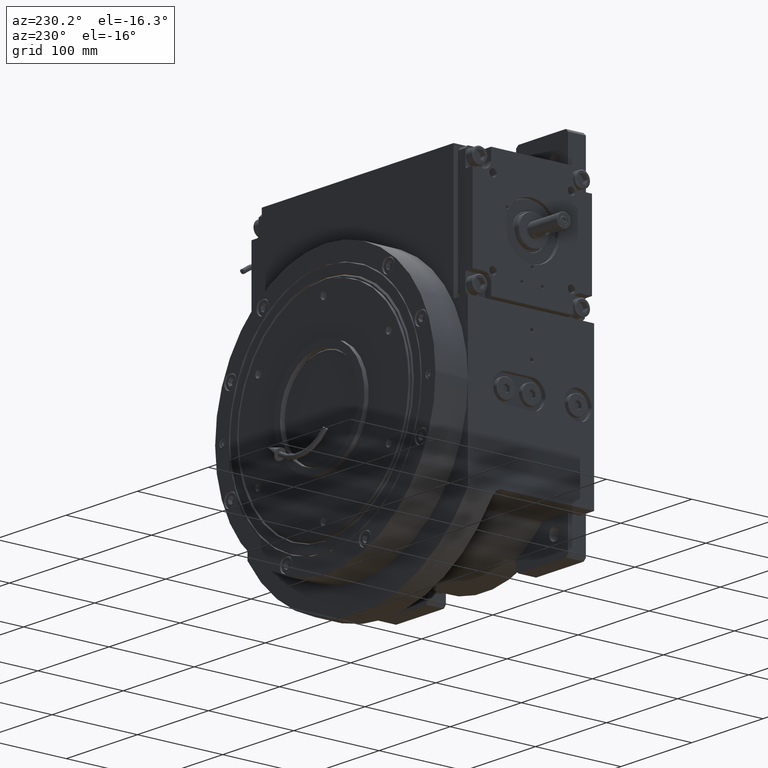
[diagram: clean part render]
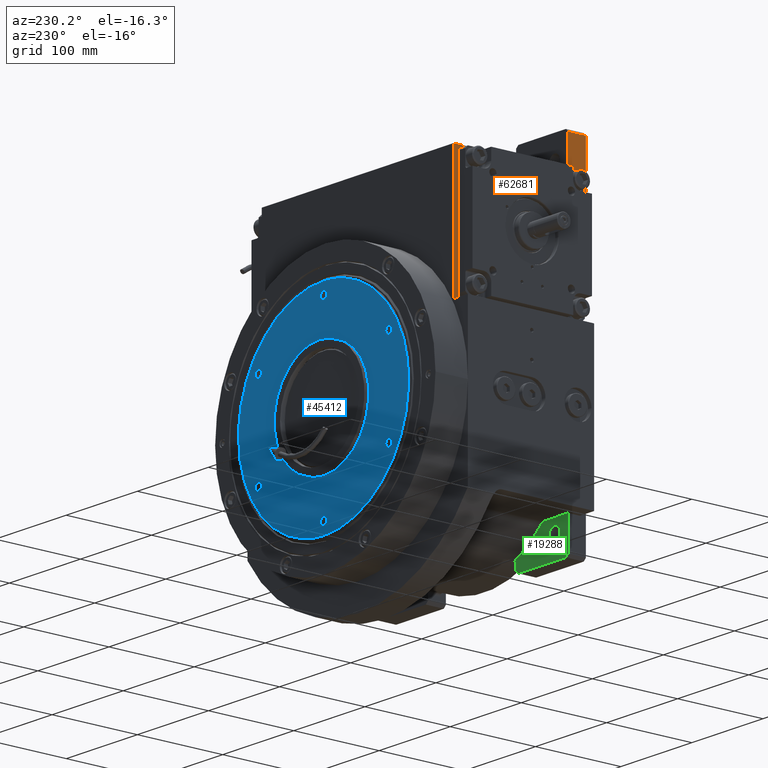
[diagram: same view with three faces highlighted in distinct colors, each labeled with its STEP entity id]
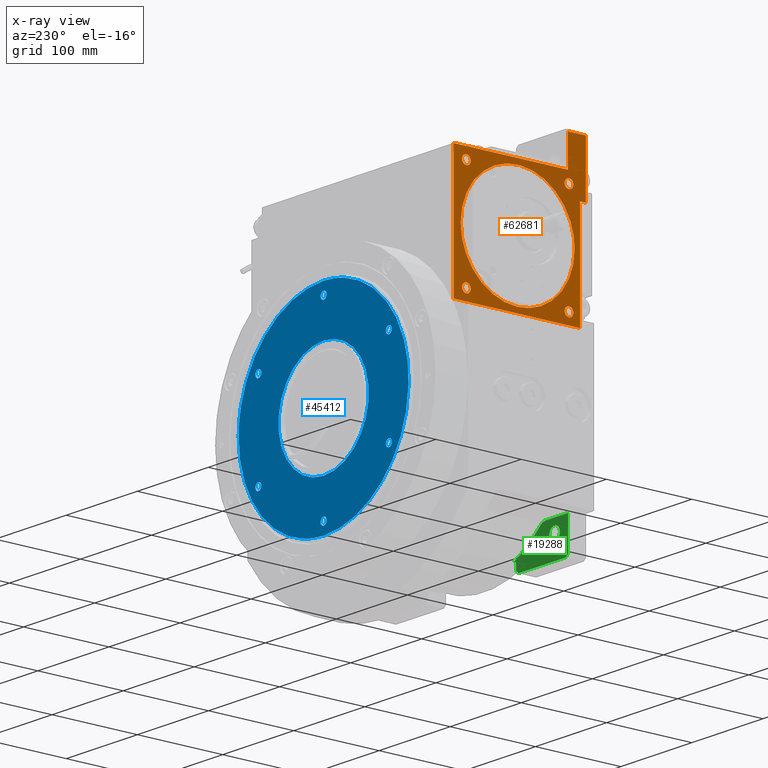
[diagram: x-ray of the same camera — body ghosted, the three highlighted faces saturated]
A machine part, auxiliary view with three faces highlighted in distinct colors.
The next image is the same camera in x-ray (body ghosted, the three faces saturated) — at least one of them is partly hidden behind the body in this view.
Their STEP definitions:

[orange] entity #62681 — the highlighted planar face has unit normal (-1, 0, 0).
#62 = CARTESIAN_POINT ( 'NONE',  ( -135.0000000000000000, -53.05018506670872114, 112.2812554254124109 ) ) ;
#406 = CARTESIAN_POINT ( 'NONE',  ( -134.9999999999999716, -8.711652072756507437, 86.80225663221509080 ) ) ;
#731 = EDGE_CURVE ( 'NONE', #2280, #35458, #46646, .T. ) ;
#869 = ORIENTED_EDGE ( 'NONE', *, *, #20220, .T. ) ;
#1015 = CARTESIAN_POINT ( 'NONE',  ( -135.0000000000000000, -60.10407640085649916, 92.89592359914350084 ) ) ;
#1342 = CARTESIAN_POINT ( 'NONE',  ( -135.0000000000000000, 65.79818871033656080, 164.1440743054472478 ) ) ;
#1689 = CARTESIAN_POINT ( 'NONE',  ( -135.0000000000000000, 50.28417944682632168, 197.0891851905739713 ) ) ;
#1904 = CARTESIAN_POINT ( 'NONE',  ( -135.0000000000000000, 55.00407640085649774, 213.1040764008565134 ) ) ;
#1936 = CARTESIAN_POINT ( 'NONE',  ( -135.0000000000000000, 40.71683731053553856, 99.94851659146181078 ) ) ;
#2036 = CARTESIAN_POINT ( 'NONE',  ( -135.0000409023520263, 66.73197994141509071, 152.9999992669739868 ) ) ;
#2074 = ORIENTED_EDGE ( 'NONE', *, *, #59299, .T. ) ;
#2280 = VERTEX_POINT ( 'NONE', #52084 ) ;
#2381 = CARTESIAN_POINT ( 'NONE',  ( -134.9999999999999716, 57.92087000630010607, 186.4290464929079292 ) ) ;
#2630 = CARTESIAN_POINT ( 'NONE',  ( -135.0000000000000000, 63.22501461799187439, 131.5381801942880884 ) ) ;
#3673 = CARTESIAN_POINT ( 'NONE',  ( -135.0000000000000000, -66.72617910770702565, 148.5899839204739123 ) ) ;
#3758 = DIRECTION ( 'NONE',  ( 1.000000000000000000, 0.000000000000000000, 0.000000000000000000 ) ) ;
#4131 = FACE_BOUND ( 'NONE', #38877, .T. ) ;
#4340 = CARTESIAN_POINT ( 'NONE',  ( -135.0000409023520263, 66.73197994141509071, 152.9999992669739868 ) ) ;
#4398 = EDGE_CURVE ( 'NONE', #29829, #5084, #48325, .T. ) ;
#4437 = CARTESIAN_POINT ( 'NONE',  ( -134.9999999999999716, -65.42346443907699438, 166.1478136891902579 ) ) ;
#4628 = EDGE_CURVE ( 'NONE', #48943, #5163, #64130, .T. ) ;
#4926 = ORIENTED_EDGE ( 'NONE', *, *, #19467, .T. ) ;
#4975 = CARTESIAN_POINT ( 'NONE',  ( -134.9999999999999716, -63.59265469323654685, 132.5656891662362113 ) ) ;
#5038 = CIRCLE ( 'NONE', #31764, 5.100000000000000533 ) ;
#5084 = VERTEX_POINT ( 'NONE', #44381 ) ;
#5163 = VERTEX_POINT ( 'NONE', #28544 ) ;
#5325 = CARTESIAN_POINT ( 'NONE',  ( -135.0000000000000000, -35.25234619547600801, 96.29704203192304135 ) ) ;
#5823 = DIRECTION ( 'NONE',  ( 0.000000000000000000, 1.000000000000000000, 0.000000000000000000 ) ) ;
#6327 = CARTESIAN_POINT ( 'NONE',  ( -134.9999999999999716, -2.329241871309106346E-09, 86.26809113139657370 ) ) ;
#6610 = B_SPLINE_CURVE_WITH_KNOTS ( 'NONE', 3,
 ( #2036, #34140, #44560, #60249, #1342, #22623, #28210, #39353, #24010, #45253, #49799, #55364, #2381, #12181, #1689, #61271, #18782, #28891, #40019, #28547, #34479, #34822, #50138, #17414, #18442, #60929, #12531, #65113, #49449, #38661, #22975, #44220, #65457, #17752, #33802, #25706, #62637, #41059, #62296, #14920, #46956, #67521, #9010, #68203, #51518, #36197, #52199, #14582, #20489, #41741, #4437, #9696, #13899, #57407 ),
 .UNSPECIFIED., .F., .F.,
 ( 4, 1, 1, 1, 1, 2, 2, 2, 2, 2, 2, 2, 2, 2, 2, 2, 2, 2, 2, 2, 2, 2, 2, 2, 1, 1, 1, 1, 2, 2, 4 ),
 ( 0.000000000000000000, 0.03125000000000071471, 0.04687500000000087430, 0.05468750000000116573, 0.05859375000000113104, 0.06054687500000110328, 0.06250000000000106859, 0.1250000000000010547, 0.1875000000000010270, 0.2500000000000009992, 0.2812500000000009992, 0.3125000000000009437, 0.3437500000000008882, 0.3750000000000008327, 0.4062500000000008327, 0.4375000000000008327, 0.5000000000000007772, 0.5625000000000007772, 0.6250000000000007772, 0.6875000000000007772, 0.7500000000000006661, 0.8125000000000006661, 0.8437500000000008882, 0.8750000000000009992, 0.9062500000000012212, 0.9218750000000011102, 0.9296875000000013323, 0.9335937500000013323, 0.9355468750000012212, 0.9375000000000009992, 1.000000000000000000 ),
 .UNSPECIFIED. ) ;
#7000 = CIRCLE ( 'NONE', #28131, 5.100000000000000533 ) ;
#7745 = ORIENTED_EDGE ( 'NONE', *, *, #4398, .T. ) ;
#7784 = DIRECTION ( 'NONE',  ( 1.000000000000000000, 0.000000000000000000, 0.000000000000000000 ) ) ;
#8073 = CARTESIAN_POINT ( 'NONE',  ( -135.0000000000000000, -80.00000000000000000, 262.0000000000000000 ) ) ;
#8228 = CARTESIAN_POINT ( 'NONE',  ( -135.0000000000000284, 21.49036814208763602, 89.67127071490156709 ) ) ;
#9010 = CARTESIAN_POINT ( 'NONE',  ( -134.9999999999999716, -60.81508464904416655, 180.5594510968731754 ) ) ;
#9043 = FACE_BOUND ( 'NONE', #56280, .T. ) ;
#9085 = ORIENTED_EDGE ( 'NONE', *, *, #33386, .T. ) ;
#9179 = DIRECTION ( 'NONE',  ( 1.000000000000000000, 0.000000000000000000, 0.000000000000000000 ) ) ;
#9696 = CARTESIAN_POINT ( 'NONE',  ( -135.0000000000000284, -66.29897171660866206, 161.7486669247570603 ) ) ;
#10198 = CARTESIAN_POINT ( 'NONE',  ( -134.9999999999999716, -23.51255065178064285, 90.50893780825224155 ) ) ;
#10426 = VERTEX_POINT ( 'NONE', #52280 ) ;
#10555 = CARTESIAN_POINT ( 'NONE',  ( -134.9999999999999432, -44.08922657045396676, 102.7159309287766291 ) ) ;
#10634 = EDGE_CURVE ( 'NONE', #35458, #2280, #17591, .T. ) ;
#11245 = EDGE_CURVE ( 'NONE', #49993, #48943, #32793, .T. ) ;
#11806 = EDGE_CURVE ( 'NONE', #29829, #29847, #59624, .T. ) ;
#12181 = CARTESIAN_POINT ( 'NONE',  ( -134.9999999999999716, 53.05066654387906766, 193.7180225626652543 ) ) ;
#12458 = LINE ( 'NONE', #54959, #45891 ) ;
#12531 = CARTESIAN_POINT ( 'NONE',  ( -134.9999999999999716, 15.16700582922174689, 218.0223788455523106 ) ) ;
#12638 = ORIENTED_EDGE ( 'NONE', *, *, #43166, .T. ) ;
#12775 = CARTESIAN_POINT ( 'NONE',  ( -135.0000000000000284, 33.43209210231695749, 95.08071934291891125 ) ) ;
#12866 = VERTEX_POINT ( 'NONE', #61862 ) ;
#12998 = CARTESIAN_POINT ( 'NONE',  ( -135.0000000000000000, 75.00000000000000000, 226.0000000000000000 ) ) ;
#13110 = CARTESIAN_POINT ( 'NONE',  ( -135.0000000000000000, 66.10061881365629688, 143.7339223711496459 ) ) ;
#13452 = CARTESIAN_POINT ( 'NONE',  ( -134.9999999999999716, 65.62994355687315817, 140.9196313714796815 ) ) ;
#13899 = CARTESIAN_POINT ( 'NONE',  ( -135.0000000000000000, -66.72632366456167574, 157.4104984626123098 ) ) ;
#13921 = VERTEX_POINT ( 'NONE', #43099 ) ;
#13937 = DIRECTION ( 'NONE',  ( 0.000000000000000000, 0.000000000000000000, 1.000000000000000000 ) ) ;
#14275 = FACE_BOUND ( 'NONE', #19989, .T. ) ;
#14582 = CARTESIAN_POINT ( 'NONE',  ( -135.0000000000000284, -65.25695639718203722, 166.9545771028307968 ) ) ;
#14805 = EDGE_CURVE ( 'NONE', #12866, #43311, #49768, .T. ) ;
#14920 = CARTESIAN_POINT ( 'NONE',  ( -135.0000000000000568, -56.70339096116889266, 188.2513165201359868 ) ) ;
#15430 = CARTESIAN_POINT ( 'NONE',  ( -134.9999999999999432, -65.34074498831350297, 139.4479566302737510 ) ) ;
#15445 = CARTESIAN_POINT ( 'NONE',  ( -135.0000000000000000, -60.10407640085649916, 213.1040764008565134 ) ) ;
#15776 = VERTEX_POINT ( 'NONE', #42338 ) ;
#15786 = CARTESIAN_POINT ( 'NONE',  ( -134.9999999999999716, -27.56220132081741880, 92.18662720043361958 ) ) ;
#15850 = VECTOR ( 'NONE', #49836, 1000.000000000000000 ) ;
#15903 = AXIS2_PLACEMENT_3D ( 'NONE', #15445, #33129, #42272 ) ;
#16137 = CARTESIAN_POINT ( 'NONE',  ( -134.9999999999999432, -2.191423099419564036, 86.26796766456610044 ) ) ;
#17414 = CARTESIAN_POINT ( 'NONE',  ( -135.0000000000000000, 23.51421264022126678, 215.4903728155080671 ) ) ;
#17591 = CIRCLE ( 'NONE', #66508, 5.100000000000000533 ) ;
#17752 = CARTESIAN_POINT ( 'NONE',  ( -135.0000000000000284, -29.58642321814674858, 212.9748835028085239 ) ) ;
#17763 = AXIS2_PLACEMENT_3D ( 'NONE', #45808, #18645, #29787 ) ;
#18195 = CARTESIAN_POINT ( 'NONE',  ( -135.0000000000000000, -80.00000000000000000, 199.0000000000000000 ) ) ;
#18344 = CARTESIAN_POINT ( 'NONE',  ( -135.0000000000000000, 53.05025701681024941, 112.2815311348377350 ) ) ;
#18442 = CARTESIAN_POINT ( 'NONE',  ( -135.0000000000000000, 21.45943048861658653, 216.2259089635468001 ) ) ;
#18645 = DIRECTION ( 'NONE',  ( 1.000000000000000000, 0.000000000000000000, 0.000000000000000000 ) ) ;
#18688 = CARTESIAN_POINT ( 'NONE',  ( -135.0000000000000284, 44.08875741230184531, 102.7155775752728744 ) ) ;
#18782 = CARTESIAN_POINT ( 'NONE',  ( -135.0000000000000000, 44.02102373728642704, 203.2011511416854717 ) ) ;
#18841 = VECTOR ( 'NONE', #44280, 1000.000000000000000 ) ;
#19125 = DIRECTION ( 'NONE',  ( 0.000000000000000000, 1.000000000000000000, 0.000000000000000000 ) ) ;
#19467 = EDGE_CURVE ( 'NONE', #10426, #36728, #40408, .T. ) ;
#19698 = EDGE_CURVE ( 'NONE', #29294, #35724, #56333, .T. ) ;
#19849 = CARTESIAN_POINT ( 'NONE',  ( -135.0000000000000000, -73.00000000000000000, 80.00000000000000000 ) ) ;
#19989 = EDGE_LOOP ( 'NONE', ( #67225, #2074 ) ) ;
#20193 = LINE ( 'NONE', #41798, #49358 ) ;
#20220 = EDGE_CURVE ( 'NONE', #36728, #29847, #66416, .T. ) ;
#20489 = CARTESIAN_POINT ( 'NONE',  ( -135.0000000000000000, -65.34088526874842273, 166.5520740222143559 ) ) ;
#20546 = DIRECTION ( 'NONE',  ( 0.000000000000000000, 0.000000000000000000, 1.000000000000000000 ) ) ;
#20867 = DIRECTION ( 'NONE',  ( 0.000000000000000000, 0.000000000000000000, 1.000000000000000000 ) ) ;
#20997 = CARTESIAN_POINT ( 'NONE',  ( -134.9999999999999716, -57.92136488741729750, 119.5716955799964865 ) ) ;
#21339 = CARTESIAN_POINT ( 'NONE',  ( -134.9999999999999716, -2.329241871309106346E-09, 86.26809113139657370 ) ) ;
#21523 = CARTESIAN_POINT ( 'NONE',  ( -135.0000000000000000, -73.00000000000000000, 199.0000000000000000 ) ) ;
#22540 = CARTESIAN_POINT ( 'NONE',  ( -135.0000000000000000, -73.00000000000000000, 199.0000000000000000 ) ) ;
#22623 = CARTESIAN_POINT ( 'NONE',  ( -134.9999999999999716, 65.62977199967382091, 165.0802809792315600 ) ) ;
#22975 = CARTESIAN_POINT ( 'NONE',  ( -135.0000000000000000, -8.720209342224498172, 219.3049496050768425 ) ) ;
#23218 = CARTESIAN_POINT ( 'NONE',  ( -135.0000000000000000, 62.49045538544596923, 129.4852013648632010 ) ) ;
#23543 = ORIENTED_EDGE ( 'NONE', *, *, #32583, .T. ) ;
#23930 = CARTESIAN_POINT ( 'NONE',  ( -135.0000000000000284, -65.42330025478716493, 139.8521579021163177 ) ) ;
#24010 = CARTESIAN_POINT ( 'NONE',  ( -134.9999999999999432, 65.47660074393127161, 165.8799824009114161 ) ) ;
#24048 = CARTESIAN_POINT ( 'NONE',  ( -135.0000000000000000, 65.20407640085649348, 92.89592359914350084 ) ) ;
#24969 = AXIS2_PLACEMENT_3D ( 'NONE', #54838, #7784, #44719 ) ;
#25403 = DIRECTION ( 'NONE',  ( -1.000000000000000000, 0.000000000000000000, 0.000000000000000000 ) ) ;
#25706 = CARTESIAN_POINT ( 'NONE',  ( -135.0000000000000284, -40.71800029252239739, 206.0507047104556193 ) ) ;
#25749 = DIRECTION ( 'NONE',  ( 1.000000000000000000, 0.000000000000000000, 0.000000000000000000 ) ) ;
#26214 = CARTESIAN_POINT ( 'NONE',  ( -134.9999999999999716, -33.38171972416309785, 95.17557014791913161 ) ) ;
#26561 = CARTESIAN_POINT ( 'NONE',  ( -135.0000000000000000, -50.28434484062721310, 108.9109816805293462 ) ) ;
#27590 = EDGE_LOOP ( 'NONE', ( #50363, #51682 ) ) ;
#27846 = ORIENTED_EDGE ( 'NONE', *, *, #40928, .T. ) ;
#28131 = AXIS2_PLACEMENT_3D ( 'NONE', #1015, #68384, #41923 ) ;
#28210 = CARTESIAN_POINT ( 'NONE',  ( -134.9999999999999716, 65.55388850672152046, 165.4808809779810019 ) ) ;
#28544 = CARTESIAN_POINT ( 'NONE',  ( -135.0000409023520263, 66.73197994141509071, 152.9999992669739868 ) ) ;
#28547 = CARTESIAN_POINT ( 'NONE',  ( -134.9999999999999716, 35.25355292848020383, 209.7021507953806179 ) ) ;
#28588 = CARTESIAN_POINT ( 'NONE',  ( -135.0000000000000000, -59.00000000000000000, 226.0000000000000000 ) ) ;
#28794 = CARTESIAN_POINT ( 'NONE',  ( -135.0000000000000000, 65.47677242538900089, 140.1200420156758639 ) ) ;
#28891 = CARTESIAN_POINT ( 'NONE',  ( -134.9999999999999716, 40.65023664082247734, 205.9674258609106516 ) ) ;
#29294 = VERTEX_POINT ( 'NONE', #59745 ) ;
#29787 = DIRECTION ( 'NONE',  ( 0.000000000000000000, -1.000000000000000000, 0.000000000000000000 ) ) ;
#29829 = VERTEX_POINT ( 'NONE', #8073 ) ;
#29847 = VERTEX_POINT ( 'NONE', #18195 ) ;
#29954 = CARTESIAN_POINT ( 'NONE',  ( -135.0000000000000000, -73.00000000000000000, 80.00000000000000000 ) ) ;
#31196 = VECTOR ( 'NONE', #33725, 1000.000000000000000 ) ;
#31460 = CARTESIAN_POINT ( 'NONE',  ( -134.9999999999999716, -29.53603513529392188, 93.11995366836703170 ) ) ;
#31482 = EDGE_CURVE ( 'NONE', #42378, #64044, #44945, .T. ) ;
#31591 = ORIENTED_EDGE ( 'NONE', *, *, #731, .T. ) ;
#31764 = AXIS2_PLACEMENT_3D ( 'NONE', #40295, #61543, #41331 ) ;
#31816 = CARTESIAN_POINT ( 'NONE',  ( -134.9999999999999716, -40.71859690145856092, 99.94981178766525431 ) ) ;
#31985 = CARTESIAN_POINT ( 'NONE',  ( -135.0000000000000000, -65.20407640085649348, 92.89592359914340136 ) ) ;
#32522 = ORIENTED_EDGE ( 'NONE', *, *, #4628, .T. ) ;
#32583 = EDGE_CURVE ( 'NONE', #5084, #42378, #12458, .T. ) ;
#32793 = B_SPLINE_CURVE_WITH_KNOTS ( 'NONE', 3,
 ( #39605, #3673, #34400, #23930, #63143, #15430, #57919, #52723, #53066, #4975, #48171, #47818, #20997, #62, #26561, #10555, #31816, #5325, #26214, #31460, #15786, #10198, #42600, #58265, #47469, #68716, #406, #63839, #16137, #21339 ),
 .UNSPECIFIED., .F., .F.,
 ( 4, 2, 2, 1, 1, 1, 1, 2, 2, 2, 2, 2, 2, 2, 2, 2, 4 ),
 ( 0.000000000000000000, 0.06249998089108574351, 0.06445310529393215304, 0.06640622969677854870, 0.07031247850247174247, 0.07812497611385851859, 0.09374997133663214022, 0.1249999617821793696, 0.1874999426732739949, 0.2499999235643686202, 0.3124999044554632177, 0.3437498949010105442, 0.3749998853465578708, 0.4062498757921051973, 0.4374998662376525238, 0.4687498566831997948, 0.4999998471287471213 ),
 .UNSPECIFIED. ) ;
#33129 = DIRECTION ( 'NONE',  ( 1.000000000000000000, 0.000000000000000000, 0.000000000000000000 ) ) ;
#33355 = CARTESIAN_POINT ( 'NONE',  ( -135.0000000000000000, -59.00000000000000000, 226.0000000000000000 ) ) ;
#33377 = EDGE_CURVE ( 'NONE', #43311, #12866, #7000, .T. ) ;
#33386 = EDGE_CURVE ( 'NONE', #13921, #15776, #45935, .T. ) ;
#33725 = DIRECTION ( 'NONE',  ( 0.000000000000000000, -1.000000000000000000, 0.000000000000000000 ) ) ;
#33802 = CARTESIAN_POINT ( 'NONE',  ( -135.0000000000000000, -33.43096252916070910, 210.9200370307772232 ) ) ;
#34140 = CARTESIAN_POINT ( 'NONE',  ( -135.0000000000000000, 66.72911495674068760, 155.2050087137197636 ) ) ;
#34400 = CARTESIAN_POINT ( 'NONE',  ( -135.0000000000000000, -66.29877207312664211, 144.2518108264758609 ) ) ;
#34479 = CARTESIAN_POINT ( 'NONE',  ( -135.0000000000000000, 33.38170125432347390, 210.8244405435396800 ) ) ;
#34730 = CARTESIAN_POINT ( 'NONE',  ( -135.0000000000000000, 66.72918723465414814, 150.7947496820667368 ) ) ;
#34822 = CARTESIAN_POINT ( 'NONE',  ( -135.0000000000000000, 29.53601480369213661, 212.8800563805484103 ) ) ;
#35458 = VERTEX_POINT ( 'NONE', #24048 ) ;
#35724 = VERTEX_POINT ( 'NONE', #1904 ) ;
#36197 = CARTESIAN_POINT ( 'NONE',  ( -135.0000000000000284, -64.61074946405196329, 169.7532608989889127 ) ) ;
#36728 = VERTEX_POINT ( 'NONE', #21523 ) ;
#36915 = ORIENTED_EDGE ( 'NONE', *, *, #38338, .F. ) ;
#36943 = VECTOR ( 'NONE', #5823, 1000.000000000000000 ) ;
#37943 = ORIENTED_EDGE ( 'NONE', *, *, #11806, .F. ) ;
#38338 = EDGE_CURVE ( 'NONE', #57356, #64044, #20193, .T. ) ;
#38661 = CARTESIAN_POINT ( 'NONE',  ( -135.0000000000000284, -4.382079036627421154, 219.7320843503953540 ) ) ;
#38877 = EDGE_LOOP ( 'NONE', ( #66888, #31591 ) ) ;
#38928 = DIRECTION ( 'NONE',  ( 0.000000000000000000, 0.000000000000000000, -1.000000000000000000 ) ) ;
#39353 = CARTESIAN_POINT ( 'NONE',  ( -134.9999999999999716, 65.50247619971588620, 165.7478073253977868 ) ) ;
#39593 = CARTESIAN_POINT ( 'NONE',  ( -135.0000000000000000, 59.97650030994342529, 123.4160534162174514 ) ) ;
#39605 = CARTESIAN_POINT ( 'NONE',  ( -135.0000409023520263, -66.73197994141509071, 153.0000007330259848 ) ) ;
#39926 = CARTESIAN_POINT ( 'NONE',  ( -135.0000000000000000, 8.721664892427865468, 86.69534183209887601 ) ) ;
#40019 = CARTESIAN_POINT ( 'NONE',  ( -135.0000000000000000, 38.89527317447581112, 207.2686076397533839 ) ) ;
#40183 = CARTESIAN_POINT ( 'NONE',  ( -135.0000409023520263, -66.73197994141509071, 153.0000007330259848 ) ) ;
#40295 = CARTESIAN_POINT ( 'NONE',  ( -135.0000000000000000, 60.10407640085649916, 213.1040764008565134 ) ) ;
#40408 = LINE ( 'NONE', #19849, #41858 ) ;
#40806 = AXIS2_PLACEMENT_3D ( 'NONE', #29954, #25403, #20867 ) ;
#40928 = EDGE_CURVE ( 'NONE', #15776, #13921, #57179, .T. ) ;
#41059 = CARTESIAN_POINT ( 'NONE',  ( -135.0000000000000284, -50.28392013255727022, 197.0894609627082730 ) ) ;
#41331 = DIRECTION ( 'NONE',  ( 0.000000000000000000, -1.000000000000000000, -5.442269728554688521E-15 ) ) ;
#41741 = CARTESIAN_POINT ( 'NONE',  ( -134.9999999999999716, -65.39603914459314637, 166.2834823389712824 ) ) ;
#41798 = CARTESIAN_POINT ( 'NONE',  ( -135.0000000000000000, 75.00000000000000000, 80.00000000000000000 ) ) ;
#41858 = VECTOR ( 'NONE', #13937, 1000.000000000000000 ) ;
#41923 = DIRECTION ( 'NONE',  ( 0.000000000000000000, -1.000000000000000000, -2.721134864277344261E-15 ) ) ;
#42272 = DIRECTION ( 'NONE',  ( 0.000000000000000000, -1.000000000000000000, -5.442269728554688521E-15 ) ) ;
#42338 = CARTESIAN_POINT ( 'NONE',  ( -135.0000000000000000, -55.00407640085649774, 213.1040764008565134 ) ) ;
#42378 = VERTEX_POINT ( 'NONE', #33355 ) ;
#42600 = CARTESIAN_POINT ( 'NONE',  ( -135.0000000000000000, -21.45945447757745583, 89.77409920556289080 ) ) ;
#42850 = CARTESIAN_POINT ( 'NONE',  ( -135.0000000000000000, 75.00000000000000000, 80.00000000000000000 ) ) ;
#43099 = CARTESIAN_POINT ( 'NONE',  ( -135.0000000000000000, -65.20407640085649348, 213.1040764008565134 ) ) ;
#43166 = EDGE_CURVE ( 'NONE', #5163, #49993, #6610, .T. ) ;
#43311 = VERTEX_POINT ( 'NONE', #31985 ) ;
#44220 = CARTESIAN_POINT ( 'NONE',  ( -135.0000000000000284, -17.31754463088451956, 217.5945705205872400 ) ) ;
#44280 = DIRECTION ( 'NONE',  ( 0.000000000000000000, 0.000000000000000000, -1.000000000000000000 ) ) ;
#44381 = CARTESIAN_POINT ( 'NONE',  ( -135.0000000000000000, -59.00000000000000000, 262.0000000000000000 ) ) ;
#44463 = CARTESIAN_POINT ( 'NONE',  ( -135.0000000000000000, 57.92138263790410946, 119.5714862343165095 ) ) ;
#44560 = CARTESIAN_POINT ( 'NONE',  ( -135.0000000000000284, 66.56663533331759197, 158.4855806484083303 ) ) ;
#44719 = DIRECTION ( 'NONE',  ( 0.000000000000000000, 1.000000000000000000, 5.442269728554688521E-15 ) ) ;
#44945 = LINE ( 'NONE', #28588, #15850 ) ;
#45253 = CARTESIAN_POINT ( 'NONE',  ( -134.9999999999999716, 64.59313072428727764, 170.3198286121192382 ) ) ;
#45496 = CARTESIAN_POINT ( 'NONE',  ( -135.0000000000000000, 65.50264352016702674, 140.2521755439662172 ) ) ;
#45593 = CARTESIAN_POINT ( 'NONE',  ( -135.0000000000000000, 60.10407640085649916, 92.89592359914350084 ) ) ;
#45808 = CARTESIAN_POINT ( 'NONE',  ( -135.0000000000000000, 60.10407640085649916, 92.89592359914350084 ) ) ;
#45891 = VECTOR ( 'NONE', #38928, 1000.000000000000000 ) ;
#45935 = CIRCLE ( 'NONE', #15903, 5.100000000000000533 ) ;
#46450 = DIRECTION ( 'NONE',  ( 0.000000000000000000, 1.000000000000000000, 2.721134864277344261E-15 ) ) ;
#46646 = CIRCLE ( 'NONE', #17763, 5.100000000000000533 ) ;
#46956 = CARTESIAN_POINT ( 'NONE',  ( -135.0000000000000284, -57.82606041925493656, 186.3789307410157789 ) ) ;
#46990 = DIRECTION ( 'NONE',  ( 0.000000000000000000, 1.000000000000000000, 5.442269728554688521E-15 ) ) ;
#47469 = CARTESIAN_POINT ( 'NONE',  ( -134.9999999999999716, -15.16854634145130909, 87.97792858772815805 ) ) ;
#47818 = CARTESIAN_POINT ( 'NONE',  ( -134.9999999999999432, -59.97758717214639290, 123.4184967689526928 ) ) ;
#48171 = CARTESIAN_POINT ( 'NONE',  ( -135.0000000000000284, -62.48990477535281940, 129.4839133968241640 ) ) ;
#48325 = LINE ( 'NONE', #65010, #36943 ) ;
#48764 = LINE ( 'NONE', #54017, #57213 ) ;
#48943 = VERTEX_POINT ( 'NONE', #6327 ) ;
#49358 = VECTOR ( 'NONE', #20546, 1000.000000000000000 ) ;
#49449 = CARTESIAN_POINT ( 'NONE',  ( -135.0000000000000000, 4.382014720190606560, 219.7320163956190981 ) ) ;
#49695 = CARTESIAN_POINT ( 'NONE',  ( -135.0000000000000284, 4.382848871896926291, 86.26791355259489080 ) ) ;
#49768 = CIRCLE ( 'NONE', #60906, 5.100000000000000533 ) ;
#49799 = CARTESIAN_POINT ( 'NONE',  ( -135.0000000000000000, 63.32800063430899229, 174.4926970785452056 ) ) ;
#49836 = DIRECTION ( 'NONE',  ( 0.000000000000000000, 1.000000000000000000, 0.000000000000000000 ) ) ;
#49993 = VERTEX_POINT ( 'NONE', #40183 ) ;
#50040 = CARTESIAN_POINT ( 'NONE',  ( -135.0000000000000284, 65.55405762672118897, 140.5190731141676679 ) ) ;
#50138 = CARTESIAN_POINT ( 'NONE',  ( -134.9999999999999716, 27.56049475894672796, 213.8140806416782596 ) ) ;
#50363 = ORIENTED_EDGE ( 'NONE', *, *, #14805, .T. ) ;
#50389 = CARTESIAN_POINT ( 'NONE',  ( -135.0000000000000284, 29.58442618282378334, 93.02428751326672796 ) ) ;
#51077 = CARTESIAN_POINT ( 'NONE',  ( -134.9999999999999716, 50.28480328542964628, 108.9114206833352370 ) ) ;
#51518 = CARTESIAN_POINT ( 'NONE',  ( -135.0000000000000000, -63.59259400077058189, 173.4346052454478126 ) ) ;
#51645 = ORIENTED_EDGE ( 'NONE', *, *, #11245, .T. ) ;
#51682 = ORIENTED_EDGE ( 'NONE', *, *, #33377, .T. ) ;
#51691 = CARTESIAN_POINT ( 'NONE',  ( -135.0000000000000000, -60.10407640085649916, 92.89592359914340136 ) ) ;
#51894 = FACE_BOUND ( 'NONE', #27590, .T. ) ;
#52084 = CARTESIAN_POINT ( 'NONE',  ( -135.0000000000000000, 55.00407640085659722, 92.89592359914350084 ) ) ;
#52199 = CARTESIAN_POINT ( 'NONE',  ( -135.0000000000000284, -65.05273595893210370, 167.8910598478658471 ) ) ;
#52280 = CARTESIAN_POINT ( 'NONE',  ( -135.0000000000000000, -73.00000000000000000, 80.00000000000000000 ) ) ;
#52723 = CARTESIAN_POINT ( 'NONE',  ( -135.0000000000000284, -65.05265234314231293, 138.1090658451037712 ) ) ;
#53066 = CARTESIAN_POINT ( 'NONE',  ( -135.0000000000000284, -64.61073071759187769, 136.2469622776340259 ) ) ;
#54017 = CARTESIAN_POINT ( 'NONE',  ( -135.0000000000000000, -73.00000000000000000, 80.00000000000000000 ) ) ;
#54397 = CARTESIAN_POINT ( 'NONE',  ( -135.0000000000000000, -80.00000000000000000, 262.0000000000000000 ) ) ;
#54762 = EDGE_LOOP ( 'NONE', ( #51645, #32522, #12638 ) ) ;
#54838 = CARTESIAN_POINT ( 'NONE',  ( -135.0000000000000000, -60.10407640085649916, 213.1040764008565134 ) ) ;
#54959 = CARTESIAN_POINT ( 'NONE',  ( -135.0000000000000000, -59.00000000000000000, 262.0000000000000000 ) ) ;
#55267 = CARTESIAN_POINT ( 'NONE',  ( -134.9999999999999716, 65.02154219704864602, 137.8326550163055231 ) ) ;
#55364 = CARTESIAN_POINT ( 'NONE',  ( -134.9999999999999432, 59.97692436927777493, 182.5831020487039780 ) ) ;
#55609 = CARTESIAN_POINT ( 'NONE',  ( -135.0000000000000000, 66.56678247795126424, 147.5139989000039975 ) ) ;
#56280 = EDGE_LOOP ( 'NONE', ( #27846, #9085 ) ) ;
#56286 = AXIS2_PLACEMENT_3D ( 'NONE', #68583, #25749, #46990 ) ;
#56333 = CIRCLE ( 'NONE', #56286, 5.100000000000000533 ) ;
#57179 = CIRCLE ( 'NONE', #24969, 5.100000000000000533 ) ;
#57213 = VECTOR ( 'NONE', #64775, 1000.000000000000000 ) ;
#57356 = VERTEX_POINT ( 'NONE', #42850 ) ;
#57407 = CARTESIAN_POINT ( 'NONE',  ( -135.0000409023520263, -66.73197994141509071, 153.0000007330259848 ) ) ;
#57919 = CARTESIAN_POINT ( 'NONE',  ( -134.9999999999999716, -65.25683405926065461, 139.0454843817813071 ) ) ;
#58265 = CARTESIAN_POINT ( 'NONE',  ( -135.0000000000000000, -17.28660976874992272, 88.50824554290836943 ) ) ;
#58601 = EDGE_CURVE ( 'NONE', #10426, #57356, #48764, .T. ) ;
#59299 = EDGE_CURVE ( 'NONE', #35724, #29294, #5038, .T. ) ;
#59624 = LINE ( 'NONE', #54397, #18841 ) ;
#59745 = CARTESIAN_POINT ( 'NONE',  ( -135.0000000000000000, 65.20407640085649348, 213.1040764008565134 ) ) ;
#60249 = CARTESIAN_POINT ( 'NONE',  ( -135.0000000000000284, 66.10044304009124971, 162.2657675844024823 ) ) ;
#60497 = CARTESIAN_POINT ( 'NONE',  ( -134.9999999999999716, -2.329241871309106346E-09, 86.26809113139657370 ) ) ;
#60832 = CARTESIAN_POINT ( 'NONE',  ( -134.9999999999999716, 65.79836411947344743, 141.8557506192772735 ) ) ;
#60906 = AXIS2_PLACEMENT_3D ( 'NONE', #51691, #9179, #46450 ) ;
#60929 = CARTESIAN_POINT ( 'NONE',  ( -134.9999999999999716, 17.28658400092328762, 217.4917613818713846 ) ) ;
#61173 = CARTESIAN_POINT ( 'NONE',  ( -135.0000000000000000, 64.49085588939148295, 135.7126261227272437 ) ) ;
#61271 = CARTESIAN_POINT ( 'NONE',  ( -135.0000000000000000, 45.63807178789154761, 201.7352399945497723 ) ) ;
#61543 = DIRECTION ( 'NONE',  ( 1.000000000000000000, 0.000000000000000000, 0.000000000000000000 ) ) ;
#61862 = CARTESIAN_POINT ( 'NONE',  ( -135.0000000000000000, -55.00407640085649774, 92.89592359914340136 ) ) ;
#62296 = CARTESIAN_POINT ( 'NONE',  ( -135.0000000000000000, -53.05069766541207343, 193.7178108165399806 ) ) ;
#62310 = ORIENTED_EDGE ( 'NONE', *, *, #58601, .F. ) ;
#62637 = CARTESIAN_POINT ( 'NONE',  ( -134.9999999999999716, -44.08966329790003869, 203.2835180466965426 ) ) ;
#62681 = ADVANCED_FACE ( 'NONE', ( #9043, #51894, #4131, #14275, #68235, #67212 ), #63012, .T. ) ;
#63012 = PLANE ( 'NONE',  #40806 ) ;
#63143 = CARTESIAN_POINT ( 'NONE',  ( -134.9999999999999716, -65.39588660307936152, 139.7165270222659785 ) ) ;
#63839 = CARTESIAN_POINT ( 'NONE',  ( -134.9999999999999432, -4.372038132923082188, 86.37483267302246759 ) ) ;
#64044 = VERTEX_POINT ( 'NONE', #12998 ) ;
#64130 = B_SPLINE_CURVE_WITH_KNOTS ( 'NONE', 3,
 ( #60497, #49695, #39926, #66394, #8228, #50389, #12775, #1936, #18688, #51077, #18344, #44463, #39593, #23218, #2630, #61173, #55267, #28794, #45496, #50040, #13452, #60832, #13110, #55609, #34730, #4340 ),
 .UNSPECIFIED., .F., .F.,
 ( 4, 2, 2, 2, 2, 2, 2, 2, 2, 2, 1, 1, 1, 1, 4 ),
 ( 0.4999998471287471213, 0.5624998662376519132, 0.6249998853465567050, 0.6874999044554614969, 0.7499999235643663997, 0.8124999426732711916, 0.8749999617821759834, 0.9062499713366282128, 0.9374999808910804422, 0.9394531064882338800, 0.9414062320853875399, 0.9453124832796950816, 0.9531249856683099431, 0.9687499904455399991, 1.000000000000000000 ),
 .UNSPECIFIED. ) ;
#64775 = DIRECTION ( 'NONE',  ( 0.000000000000000000, 1.000000000000000000, 0.000000000000000000 ) ) ;
#65010 = CARTESIAN_POINT ( 'NONE',  ( -135.0000000000000000, -80.00000000000000000, 262.0000000000000000 ) ) ;
#65113 = CARTESIAN_POINT ( 'NONE',  ( -134.9999999999999716, 8.722431051068843644, 219.3045942595957740 ) ) ;
#65176 = EDGE_LOOP ( 'NONE', ( #68359, #36915, #62310, #4926, #869, #37943, #7745, #23543 ) ) ;
#65457 = CARTESIAN_POINT ( 'NONE',  ( -135.0000000000000000, -21.48841565130487297, 216.3295398161445462 ) ) ;
#66394 = CARTESIAN_POINT ( 'NONE',  ( -135.0000000000000000, 17.31603389975692409, 88.40512706439466228 ) ) ;
#66416 = LINE ( 'NONE', #22540, #31196 ) ;
#66508 = AXIS2_PLACEMENT_3D ( 'NONE', #45593, #3758, #19125 ) ;
#66888 = ORIENTED_EDGE ( 'NONE', *, *, #10634, .T. ) ;
#67212 = FACE_OUTER_BOUND ( 'NONE', #65176, .T. ) ;
#67225 = ORIENTED_EDGE ( 'NONE', *, *, #19698, .T. ) ;
#67521 = CARTESIAN_POINT ( 'NONE',  ( -134.9999999999999432, -59.88160938776118769, 182.5337171554702707 ) ) ;
#68203 = CARTESIAN_POINT ( 'NONE',  ( -135.0000000000000284, -62.48986222049342842, 176.5162299610627485 ) ) ;
#68235 = FACE_BOUND ( 'NONE', #54762, .T. ) ;
#68359 = ORIENTED_EDGE ( 'NONE', *, *, #31482, .T. ) ;
#68384 = DIRECTION ( 'NONE',  ( 1.000000000000000000, 0.000000000000000000, 0.000000000000000000 ) ) ;
#68583 = CARTESIAN_POINT ( 'NONE',  ( -135.0000000000000000, 60.10407640085649916, 213.1040764008565134 ) ) ;
#68716 = CARTESIAN_POINT ( 'NONE',  ( -134.9999999999999432, -10.86913734108442853, 87.12251442966194759 ) ) ;

[blue] entity #45412 — the highlighted planar face has unit normal (-0, -1, -0).
#20 = CARTESIAN_POINT ( 'NONE',  ( -101.7500000000000000, 132.5000000000000000, 4.326942450172399646E-15 ) ) ;
#53 = CARTESIAN_POINT ( 'NONE',  ( 79.01556773928005839, 132.4999999999999716, -90.12188140907566947 ) ) ;
#580 = CARTESIAN_POINT ( 'NONE',  ( -53.00000000000000000, 132.5000000000000000, 91.79869280115049435 ) ) ;
#799 = DIRECTION ( 'NONE',  ( 0.000000000000000000, 1.000000000000000000, 0.000000000000000000 ) ) ;
#895 = DIRECTION ( 'NONE',  ( 0.000000000000000000, 1.000000000000000000, 0.000000000000000000 ) ) ;
#980 = CARTESIAN_POINT ( 'NONE',  ( -119.5956233153338246, 132.5000000000000284, 3.936890116089832414 ) ) ;
#1332 = CARTESIAN_POINT ( 'NONE',  ( -115.5837651074193957, 132.5000000000000568, 30.97752406922286283 ) ) ;
#1482 = VERTEX_POINT ( 'NONE', #33415 ) ;
#1588 = DIRECTION ( 'NONE',  ( -1.000000000000000000, 0.000000000000000000, 0.000000000000000000 ) ) ;
#1939 = AXIS2_PLACEMENT_3D ( 'NONE', #59113, #48999, #60150 ) ;
#2371 = CARTESIAN_POINT ( 'NONE',  ( 31.03403195832954609, 132.4999999999999716, 115.7682033523441163 ) ) ;
#2462 = CARTESIAN_POINT ( 'NONE',  ( -48.75000000000000000, 132.5000000000000000, 91.79869280115049435 ) ) ;
#2716 = CARTESIAN_POINT ( 'NONE',  ( 117.2049829753469794, 132.4999999999999716, 23.80735014848060871 ) ) ;
#3347 = EDGE_CURVE ( 'NONE', #22629, #64374, #6357, .T. ) ;
#3502 = CARTESIAN_POINT ( 'NONE',  ( -90.12186494314444474, 132.5000000000000284, -79.01502765648555737 ) ) ;
#3642 = ORIENTED_EDGE ( 'NONE', *, *, #10860, .F. ) ;
#3741 = CARTESIAN_POINT ( 'NONE',  ( -111.9973035085247375, 132.5000000000000000, 42.13973393510149634 ) ) ;
#3999 = ORIENTED_EDGE ( 'NONE', *, *, #46510, .F. ) ;
#4079 = EDGE_CURVE ( 'NONE', #1482, #7371, #37633, .T. ) ;
#4087 = CIRCLE ( 'NONE', #40869, 4.249999999999996447 ) ;
#4333 = FACE_BOUND ( 'NONE', #5370, .T. ) ;
#4466 = EDGE_CURVE ( 'NONE', #64374, #22629, #26923, .T. ) ;
#4531 = CARTESIAN_POINT ( 'NONE',  ( -111.9974582111460251, 132.4999999999999716, -42.13946286481024117 ) ) ;
#4635 = EDGE_CURVE ( 'NONE', #36429, #55721, #24751, .T. ) ;
#4725 = AXIS2_PLACEMENT_3D ( 'NONE', #62539, #20041, #20726 ) ;
#5370 = EDGE_LOOP ( 'NONE', ( #34225, #64849 ) ) ;
#5662 = CARTESIAN_POINT ( 'NONE',  ( 101.6234431272200709, 132.4999999999999716, -63.18064476700832444 ) ) ;
#5980 = EDGE_LOOP ( 'NONE', ( #19554, #26415 ) ) ;
#6357 = CIRCLE ( 'NONE', #54212, 4.249999999999996447 ) ;
#6597 = CARTESIAN_POINT ( 'NONE',  ( -117.9267825953777731, 132.5000000000000284, 19.96307623967795308 ) ) ;
#6694 = CARTESIAN_POINT ( 'NONE',  ( 38.51301285542140107, 132.5000000000000000, -113.4994728717662156 ) ) ;
#6997 = EDGE_CURVE ( 'NONE', #20855, #1482, #29109, .T. ) ;
#7371 = VERTEX_POINT ( 'NONE', #43850 ) ;
#7614 = CARTESIAN_POINT ( 'NONE',  ( -38.51331812006800703, 132.4999999999999716, 113.4993459506183342 ) ) ;
#7861 = EDGE_CURVE ( 'NONE', #51382, #56092, #22315, .T. ) ;
#8650 = CARTESIAN_POINT ( 'NONE',  ( 116.9028264186511734, 132.4999999999999716, 25.24992049835763552 ) ) ;
#8698 = ORIENTED_EDGE ( 'NONE', *, *, #4635, .F. ) ;
#8895 = CARTESIAN_POINT ( 'NONE',  ( -53.00000000000000000, 132.5000000000000000, -91.79869280115049435 ) ) ;
#8999 = CARTESIAN_POINT ( 'NONE',  ( 79.01607143673868450, 132.5000000000000000, 90.12128658494100364 ) ) ;
#9177 = CARTESIAN_POINT ( 'NONE',  ( 113.9742727458751688, 132.4999999999999716, -36.61592839980166758 ) ) ;
#9253 = ORIENTED_EDGE ( 'NONE', *, *, #45705, .F. ) ;
#9551 = B_SPLINE_CURVE_WITH_KNOTS ( 'NONE', 3,
 ( #62464, #53061, #36024, #26555, #15423, #19636, #14402, #56893, #9177, #57237, #22009, #37387, #32493, #5662, #27258, #64502, #53, #58608, #26909, #11229, #6694, #43267, #27595, #48832, #27942 ),
 .UNSPECIFIED., .F., .F.,
 ( 4, 2, 2, 1, 1, 1, 2, 2, 2, 2, 2, 2, 2, 4 ),
 ( 0.000000000000000000, 0.06249999705023377011, 0.06640624686587336123, 0.07031249668151294541, 0.07812499631279207213, 0.09374999557535031169, 0.1249999941004668463, 0.1562499926255833671, 0.1874999911506998740, 0.2499999882009329710, 0.3124999852511660126, 0.3749999823013990263, 0.4374999793516321511, 0.4999999764018651649 ),
 .UNSPECIFIED. ) ;
#9789 = CARTESIAN_POINT ( 'NONE',  ( -103.8052560290536803, 132.5000000000000284, -59.91548717308323546 ) ) ;
#10052 = CARTESIAN_POINT ( 'NONE',  ( 2.842170943040399481E-14, 132.5000000000000000, 0.000000000000000000 ) ) ;
#10059 = CIRCLE ( 'NONE', #58993, 63.50000000000000000 ) ;
#10076 = EDGE_CURVE ( 'NONE', #55721, #36429, #32231, .T. ) ;
#10860 = EDGE_CURVE ( 'NONE', #56092, #51382, #15387, .T. ) ;
#11192 = AXIS2_PLACEMENT_3D ( 'NONE', #32301, #43419, #53555 ) ;
#11229 = CARTESIAN_POINT ( 'NONE',  ( 53.02365767403531294, 132.4999999999999716, -107.4886443671187379 ) ) ;
#11477 = CARTESIAN_POINT ( 'NONE',  ( -117.6672447314543462, 132.5000000000000284, 21.40612464314073549 ) ) ;
#11962 = VERTEX_POINT ( 'NONE', #62360 ) ;
#12604 = EDGE_LOOP ( 'NONE', ( #39956, #23454 ) ) ;
#12859 = CARTESIAN_POINT ( 'NONE',  ( 7.852477446397145400, 132.5000000000000000, 119.5980018039695523 ) ) ;
#13217 = VERTEX_POINT ( 'NONE', #30686 ) ;
#13538 = CARTESIAN_POINT ( 'NONE',  ( -53.02334008211830962, 132.4999999999999716, 107.4887763946628496 ) ) ;
#13702 = CARTESIAN_POINT ( 'NONE',  ( 53.00000000000000000, 132.5000000000000000, -91.79869280115049435 ) ) ;
#13888 = CARTESIAN_POINT ( 'NONE',  ( 119.5980721650030034, 132.4999989161624114, 1.767335301138990268E-07 ) ) ;
#13984 = CARTESIAN_POINT ( 'NONE',  ( -119.5980721650030034, 132.4999989161624114, -1.767334990594889853E-07 ) ) ;
#14322 = VERTEX_POINT ( 'NONE', #19384 ) ;
#14402 = CARTESIAN_POINT ( 'NONE',  ( 116.5896179974521090, 132.4999999999999432, -26.68677847412657300 ) ) ;
#15013 = CARTESIAN_POINT ( 'NONE',  ( -31.03506768473779331, 132.5000000000000284, -115.7679978660157047 ) ) ;
#15387 = CIRCLE ( 'NONE', #17643, 4.250000000000003553 ) ;
#15423 = CARTESIAN_POINT ( 'NONE',  ( 117.1059352410836567, 132.4999999999999432, -24.28995552537162084 ) ) ;
#16362 = DIRECTION ( 'NONE',  ( 0.000000000000000000, 1.000000000000000000, 0.000000000000000000 ) ) ;
#17643 = AXIS2_PLACEMENT_3D ( 'NONE', #47991, #31987, #26386 ) ;
#18082 = CARTESIAN_POINT ( 'NONE',  ( -72.97471124054754910, 132.5000000000000000, 95.07930562639819527 ) ) ;
#18341 = EDGE_CURVE ( 'NONE', #13217, #11962, #66805, .T. ) ;
#18429 = CARTESIAN_POINT ( 'NONE',  ( -103.8047769612034301, 132.5000000000000568, 59.91610311660689803 ) ) ;
#18771 = CARTESIAN_POINT ( 'NONE',  ( 113.9740628080294300, 132.4999999999999716, 36.61660152453824679 ) ) ;
#18852 = EDGE_LOOP ( 'NONE', ( #59693, #3642 ) ) ;
#19109 = CARTESIAN_POINT ( 'NONE',  ( 107.3188041507643078, 132.5000000000000000, 52.93353850396861304 ) ) ;
#19384 = CARTESIAN_POINT ( 'NONE',  ( 57.25000000000000000, 132.5000000000000000, 91.79869280115049435 ) ) ;
#19554 = ORIENTED_EDGE ( 'NONE', *, *, #20043, .F. ) ;
#19636 = CARTESIAN_POINT ( 'NONE',  ( 116.9028586357416373, 132.4999999999999716, -25.24974653081255838 ) ) ;
#19706 = FACE_BOUND ( 'NONE', #5980, .T. ) ;
#20041 = DIRECTION ( 'NONE',  ( 0.000000000000000000, 1.000000000000000000, 0.000000000000000000 ) ) ;
#20043 = EDGE_CURVE ( 'NONE', #45907, #47366, #56754, .T. ) ;
#20075 = VERTEX_POINT ( 'NONE', #32684 ) ;
#20231 = EDGE_CURVE ( 'NONE', #13217, #11962, #10059, .T. ) ;
#20318 = CARTESIAN_POINT ( 'NONE',  ( -4.550962199319940436E-10, 132.4999999999996874, -119.5980143915192571 ) ) ;
#20726 = DIRECTION ( 'NONE',  ( -1.000000000000000000, 0.000000000000000000, 0.000000000000000000 ) ) ;
#20855 = VERTEX_POINT ( 'NONE', #20318 ) ;
#20920 = CARTESIAN_POINT ( 'NONE',  ( -72.97537000833557386, 132.5000000000000000, -95.07895749975364197 ) ) ;
#21193 = ORIENTED_EDGE ( 'NONE', *, *, #3347, .F. ) ;
#22009 = CARTESIAN_POINT ( 'NONE',  ( 108.9920191625073898, 132.5000000000000000, -49.39467039381823099 ) ) ;
#22315 = CIRCLE ( 'NONE', #11192, 4.250000000000003553 ) ;
#22629 = VERTEX_POINT ( 'NONE', #63088 ) ;
#22959 = CARTESIAN_POINT ( 'NONE',  ( -119.3065723542938628, 132.5000000000000000, 9.805496583939431687 ) ) ;
#23454 = ORIENTED_EDGE ( 'NONE', *, *, #45251, .F. ) ;
#23649 = CARTESIAN_POINT ( 'NONE',  ( 95.08043956285567333, 132.5000000000000284, 72.97263514675432816 ) ) ;
#23994 = CARTESIAN_POINT ( 'NONE',  ( -15.63070449363825354, 132.5000000000000000, 118.8319435994074951 ) ) ;
#24751 = CIRCLE ( 'NONE', #4725, 4.250000000000003553 ) ;
#24784 = CARTESIAN_POINT ( 'NONE',  ( -118.4700002642404115, 132.5000000000000000, -16.58816627603879468 ) ) ;
#25027 = CARTESIAN_POINT ( 'NONE',  ( 117.1059325233100168, 132.4999999999999432, 24.29004452938627168 ) ) ;
#25270 = CARTESIAN_POINT ( 'NONE',  ( 2.434822665450114630E-14, 132.5000000000000000, 0.000000000000000000 ) ) ;
#25796 = CARTESIAN_POINT ( 'NONE',  ( -117.9268274798861853, 132.5000000000000000, -19.96321246655517712 ) ) ;
#26140 = CARTESIAN_POINT ( 'NONE',  ( -79.01580708250361340, 132.5000000000000284, -90.12155054145631539 ) ) ;
#26386 = DIRECTION ( 'NONE',  ( 1.000000000000000000, 0.000000000000000000, 0.000000000000000000 ) ) ;
#26414 = DIRECTION ( 'NONE',  ( 1.000000000000000000, 0.000000000000000000, 1.224646799147351975E-16 ) ) ;
#26415 = ORIENTED_EDGE ( 'NONE', *, *, #28390, .F. ) ;
#26555 = CARTESIAN_POINT ( 'NONE',  ( 117.2049556399937131, 132.4999999999999432, -23.80737829951425866 ) ) ;
#26909 = CARTESIAN_POINT ( 'NONE',  ( 59.91550615130531554, 132.4999999999999432, -103.8049390310300311 ) ) ;
#26923 = CIRCLE ( 'NONE', #31404, 4.249999999999996447 ) ;
#27139 = DIRECTION ( 'NONE',  ( -1.000000000000000000, 0.000000000000000000, 0.000000000000000000 ) ) ;
#27258 = CARTESIAN_POINT ( 'NONE',  ( 95.08017279063210481, 132.5000000000000568, -72.97317664159901085 ) ) ;
#27505 = CARTESIAN_POINT ( 'NONE',  ( -119.5980721650030034, 132.4999989161624114, -1.767334990594889853E-07 ) ) ;
#27595 = CARTESIAN_POINT ( 'NONE',  ( 15.63032036869237906, 132.4999999999999716, -118.8320205203783217 ) ) ;
#27847 = CARTESIAN_POINT ( 'NONE',  ( -117.3961737238489320, 132.5000000000000284, 22.84584581217491817 ) ) ;
#27942 = CARTESIAN_POINT ( 'NONE',  ( -4.550962199319940436E-10, 132.4999999999996874, -119.5980143915192571 ) ) ;
#28390 = EDGE_CURVE ( 'NONE', #47366, #45907, #33527, .T. ) ;
#28786 = FACE_OUTER_BOUND ( 'NONE', #37385, .T. ) ;
#28877 = CARTESIAN_POINT ( 'NONE',  ( -95.07992536302896269, 132.5000000000000284, 72.97354654652208694 ) ) ;
#29109 = B_SPLINE_CURVE_WITH_KNOTS ( 'NONE', 3,
 ( #68636, #57504, #30351, #15013, #46703, #36289, #51613, #20920, #26140, #3502, #31033, #9789, #62391, #4531, #67953, #51956, #35949, #41831, #56480, #61709, #25796, #24784, #67278, #57161, #13984 ),
 .UNSPECIFIED., .F., .F.,
 ( 4, 2, 2, 2, 2, 2, 2, 2, 2, 2, 1, 1, 1, 4 ),
 ( 0.4999999764018651649, 0.5624999793516320956, 0.6249999823013989708, 0.6874999852511658460, 0.7499999882009327212, 0.8124999911506995964, 0.8749999941004663606, 0.9062499955753497982, 0.9374999970502331248, 0.9414062472345936516, 0.9453124974189539564, 0.9531249977876747881, 0.9687499985251165624, 1.000000000000000000 ),
 .UNSPECIFIED. ) ;
#29397 = CARTESIAN_POINT ( 'NONE',  ( -57.25000000000000000, 132.5000000000000000, 91.79869280115049435 ) ) ;
#29447 = VERTEX_POINT ( 'NONE', #54863 ) ;
#29570 = CARTESIAN_POINT ( 'NONE',  ( 53.02302079437171045, 132.5000000000000000, 107.4889819577408332 ) ) ;
#30066 = DIRECTION ( 'NONE',  ( 0.000000000000000000, 1.000000000000000000, 0.000000000000000000 ) ) ;
#30351 = CARTESIAN_POINT ( 'NONE',  ( -15.62997631084960659, 132.5000000000000000, -118.8320161992740225 ) ) ;
#30686 = CARTESIAN_POINT ( 'NONE',  ( 63.50000000000000000, 132.5000000000000000, 7.776507174585678752E-15 ) ) ;
#30756 = DIRECTION ( 'NONE',  ( 1.000000000000000000, 0.000000000000000000, 0.000000000000000000 ) ) ;
#30842 = DIRECTION ( 'NONE',  ( -1.000000000000000000, 1.836909530733564901E-16, 0.000000000000000000 ) ) ;
#31001 = VERTEX_POINT ( 'NONE', #65562 ) ;
#31033 = CARTESIAN_POINT ( 'NONE',  ( -95.07944186718462731, 132.5000000000000284, -72.97412786101946836 ) ) ;
#31404 = AXIS2_PLACEMENT_3D ( 'NONE', #49346, #895, #1588 ) ;
#31851 = ORIENTED_EDGE ( 'NONE', *, *, #47253, .T. ) ;
#31987 = DIRECTION ( 'NONE',  ( 0.000000000000000000, 1.000000000000000000, 0.000000000000000000 ) ) ;
#32011 = DIRECTION ( 'NONE',  ( 0.000000000000000000, -1.000000000000000000, 0.000000000000000000 ) ) ;
#32029 = CIRCLE ( 'NONE', #1939, 4.249999999999996447 ) ;
#32231 = CIRCLE ( 'NONE', #45600, 4.250000000000003553 ) ;
#32301 = CARTESIAN_POINT ( 'NONE',  ( 106.0000000000000000, 132.5000000000000000, 0.000000000000000000 ) ) ;
#32335 = DIRECTION ( 'NONE',  ( -1.000000000000000000, 0.000000000000000000, 0.000000000000000000 ) ) ;
#32493 = CARTESIAN_POINT ( 'NONE',  ( 103.6349907659254512, 132.5000000000000000, -59.82547691295563652 ) ) ;
#32684 = CARTESIAN_POINT ( 'NONE',  ( 48.75000000000000000, 132.5000000000000000, 91.79869280115049435 ) ) ;
#32920 = DIRECTION ( 'NONE',  ( -1.000000000000000000, 0.000000000000000000, 0.000000000000000000 ) ) ;
#33031 = DIRECTION ( 'NONE',  ( 0.000000000000000000, 1.000000000000000000, 0.000000000000000000 ) ) ;
#33415 = CARTESIAN_POINT ( 'NONE',  ( -119.5980721650030034, 132.4999989161624114, -1.767334990594889853E-07 ) ) ;
#33527 = CIRCLE ( 'NONE', #39080, 4.249999999999996447 ) ;
#33884 = DIRECTION ( 'NONE',  ( 1.000000000000000000, 0.000000000000000000, -2.089831575764998299E-16 ) ) ;
#34130 = CARTESIAN_POINT ( 'NONE',  ( 90.12160687888317057, 132.4999999999999716, 79.01528532276357453 ) ) ;
#34225 = ORIENTED_EDGE ( 'NONE', *, *, #20231, .F. ) ;
#34463 = CARTESIAN_POINT ( 'NONE',  ( 59.91608237042110119, 132.5000000000000000, 103.8044663396044882 ) ) ;
#35595 = ORIENTED_EDGE ( 'NONE', *, *, #4079, .T. ) ;
#35949 = CARTESIAN_POINT ( 'NONE',  ( -116.5339786851476447, 132.5000000000000284, -27.18121637598229512 ) ) ;
#36024 = CARTESIAN_POINT ( 'NONE',  ( 118.8272737208750414, 132.4999999999999716, -15.64961651338912851 ) ) ;
#36289 = CARTESIAN_POINT ( 'NONE',  ( -53.02404700075017274, 132.5000000000000284, -107.4885573465993502 ) ) ;
#36429 = VERTEX_POINT ( 'NONE', #52676 ) ;
#37194 = ORIENTED_EDGE ( 'NONE', *, *, #4466, .F. ) ;
#37385 = EDGE_LOOP ( 'NONE', ( #35595, #31851, #61347 ) ) ;
#37387 = CARTESIAN_POINT ( 'NONE',  ( 107.3190010963548815, 132.5000000000000000, -52.93316007980531879 ) ) ;
#37613 = CARTESIAN_POINT ( 'NONE',  ( -53.00000000000000000, 132.5000000000000000, -91.79869280115049435 ) ) ;
#37633 = B_SPLINE_CURVE_WITH_KNOTS ( 'NONE', 3,
 ( #27505, #980, #22959, #44205, #6597, #11477, #44549, #27847, #43519, #1332, #65792, #3741, #56379, #18429, #28877, #50125, #60585, #18082, #55353, #13538, #7614, #45241, #23994, #56713, #12859, #61606, #2371, #61949, #29570, #34463, #40356, #8999, #34130, #23649, #67167, #39337, #19109, #40009, #66484, #18771, #44893, #45925, #8650, #25027, #2716, #50478, #66135, #13888 ),
 .UNSPECIFIED., .F., .F.,
 ( 4, 1, 1, 1, 2, 2, 2, 2, 2, 2, 2, 2, 2, 2, 2, 2, 2, 2, 2, 2, 2, 1, 1, 1, 2, 2, 4 ),
 ( 0.000000000000000000, 0.03124999999999995837, 0.04687499999999993061, 0.05468749999999991673, 0.05859374999999990979, 0.06249999999999990286, 0.09374999999999987510, 0.1249999999999998612, 0.1874999999999998612, 0.2499999999999998335, 0.3124999999999997780, 0.3749999999999998335, 0.4374999999999998335, 0.4999999999999998890, 0.5624999999999998890, 0.6249999999999998890, 0.6875000000000000000, 0.7500000000000000000, 0.8125000000000000000, 0.8437500000000000000, 0.8749999999999998890, 0.9062499999999998890, 0.9218749999999998890, 0.9296874999999998890, 0.9335937499999998890, 0.9374999999999998890, 1.000000000000000000 ),
 .UNSPECIFIED. ) ;
#38418 = EDGE_CURVE ( 'NONE', #31001, #29447, #51576, .T. ) ;
#39080 = AXIS2_PLACEMENT_3D ( 'NONE', #39235, #44793, #60474 ) ;
#39235 = CARTESIAN_POINT ( 'NONE',  ( -53.00000000000000000, 132.5000000000000000, 91.79869280115049435 ) ) ;
#39337 = CARTESIAN_POINT ( 'NONE',  ( 103.6347882143093528, 132.5000000000000000, 59.82585325380267705 ) ) ;
#39680 = AXIS2_PLACEMENT_3D ( 'NONE', #8895, #40261, #66383 ) ;
#39905 = EDGE_LOOP ( 'NONE', ( #8698, #40392 ) ) ;
#39932 = CARTESIAN_POINT ( 'NONE',  ( 101.7500000000000000, 132.5000000000000000, -4.556347507417140445E-16 ) ) ;
#39956 = ORIENTED_EDGE ( 'NONE', *, *, #38418, .F. ) ;
#40009 = CARTESIAN_POINT ( 'NONE',  ( 108.9921631679029161, 132.5000000000000568, 49.39426878898009932 ) ) ;
#40261 = DIRECTION ( 'NONE',  ( 0.000000000000000000, 1.000000000000000000, 0.000000000000000000 ) ) ;
#40356 = CARTESIAN_POINT ( 'NONE',  ( 72.97465361852911769, 132.4999999999999716, 95.07943571795152593 ) ) ;
#40392 = ORIENTED_EDGE ( 'NONE', *, *, #10076, .F. ) ;
#40869 = AXIS2_PLACEMENT_3D ( 'NONE', #42665, #799, #32920 ) ;
#41831 = CARTESIAN_POINT ( 'NONE',  ( -117.3962204091266130, 132.5000000000000000, -22.84579215455600121 ) ) ;
#42302 = EDGE_LOOP ( 'NONE', ( #9253, #3999 ) ) ;
#42665 = CARTESIAN_POINT ( 'NONE',  ( 53.00000000000000000, 132.5000000000000000, 91.79869280115049435 ) ) ;
#43267 = CARTESIAN_POINT ( 'NONE',  ( 31.03471967232543349, 132.5000000000000284, -115.7679930632964584 ) ) ;
#43419 = DIRECTION ( 'NONE',  ( 0.000000000000000000, 1.000000000000000000, 0.000000000000000000 ) ) ;
#43519 = CARTESIAN_POINT ( 'NONE',  ( -116.5340833015528830, 132.5000000000000284, 27.18083291892084219 ) ) ;
#43850 = CARTESIAN_POINT ( 'NONE',  ( 119.5980721650030034, 132.4999989161624114, 1.767335301138990268E-07 ) ) ;
#44205 = CARTESIAN_POINT ( 'NONE',  ( -118.4699459033113840, 132.5000000000000853, 16.58792889376495694 ) ) ;
#44549 = CARTESIAN_POINT ( 'NONE',  ( -117.4882742468176531, 132.5000000000000284, 22.36739173073496900 ) ) ;
#44793 = DIRECTION ( 'NONE',  ( 0.000000000000000000, 1.000000000000000000, 0.000000000000000000 ) ) ;
#44893 = CARTESIAN_POINT ( 'NONE',  ( 115.7981953047359696, 132.4999999999999716, 30.02177549733285034 ) ) ;
#45241 = CARTESIAN_POINT ( 'NONE',  ( -31.03432027974458052, 132.5000000000000284, 115.7680730210909275 ) ) ;
#45251 = EDGE_CURVE ( 'NONE', #29447, #31001, #68602, .T. ) ;
#45412 = ADVANCED_FACE ( 'NONE', ( #28786, #50031, #67426, #46844, #19706, #68092, #57644, #4333 ), #46185, .F. ) ;
#45600 = AXIS2_PLACEMENT_3D ( 'NONE', #65879, #55114, #33884 ) ;
#45705 = EDGE_CURVE ( 'NONE', #20075, #14322, #4087, .T. ) ;
#45907 = VERTEX_POINT ( 'NONE', #29397 ) ;
#45925 = CARTESIAN_POINT ( 'NONE',  ( 116.5895446238608173, 132.4999999999999147, 26.68707075705192722 ) ) ;
#46185 = PLANE ( 'NONE',  #64129 ) ;
#46510 = EDGE_CURVE ( 'NONE', #14322, #20075, #32029, .T. ) ;
#46703 = CARTESIAN_POINT ( 'NONE',  ( -38.51263040290829309, 132.5000000000000000, -113.4995549987479961 ) ) ;
#46758 = AXIS2_PLACEMENT_3D ( 'NONE', #10052, #32011, #26414 ) ;
#46844 = FACE_BOUND ( 'NONE', #39905, .T. ) ;
#47253 = EDGE_CURVE ( 'NONE', #7371, #20855, #9551, .T. ) ;
#47366 = VERTEX_POINT ( 'NONE', #2462 ) ;
#47834 = EDGE_LOOP ( 'NONE', ( #37194, #21193 ) ) ;
#47991 = CARTESIAN_POINT ( 'NONE',  ( 106.0000000000000000, 132.5000000000000000, 0.000000000000000000 ) ) ;
#48832 = CARTESIAN_POINT ( 'NONE',  ( 7.853205867676727792, 132.4999999999999716, -119.5979287782247695 ) ) ;
#48999 = DIRECTION ( 'NONE',  ( 0.000000000000000000, 1.000000000000000000, 0.000000000000000000 ) ) ;
#49346 = CARTESIAN_POINT ( 'NONE',  ( 53.00000000000000000, 132.5000000000000000, -91.79869280115049435 ) ) ;
#50031 = FACE_BOUND ( 'NONE', #47834, .T. ) ;
#50061 = CARTESIAN_POINT ( 'NONE',  ( 2.486899575160349704E-14, 132.5000000000000000, -3.552713678800499352E-15 ) ) ;
#50125 = CARTESIAN_POINT ( 'NONE',  ( -90.12128647612638588, 132.5000000000000284, 79.01549921329728932 ) ) ;
#50478 = CARTESIAN_POINT ( 'NONE',  ( 118.8273442272844704, 132.5000000000000284, 15.64998034039763120 ) ) ;
#51382 = VERTEX_POINT ( 'NONE', #39932 ) ;
#51576 = CIRCLE ( 'NONE', #66019, 4.249999999999996447 ) ;
#51613 = CARTESIAN_POINT ( 'NONE',  ( -59.91535673485648772, 132.5000000000000000, -103.8049507353170497 ) ) ;
#51956 = CARTESIAN_POINT ( 'NONE',  ( -115.5835919733880246, 132.5000000000000000, -30.97810130142272556 ) ) ;
#52676 = CARTESIAN_POINT ( 'NONE',  ( -110.2500000000000000, 132.5000000000000000, 3.871307699430685207E-15 ) ) ;
#53061 = CARTESIAN_POINT ( 'NONE',  ( 119.5931704195462402, 132.5000000000000000, -7.873779860337812408 ) ) ;
#53555 = DIRECTION ( 'NONE',  ( -1.000000000000000000, 0.000000000000000000, 0.000000000000000000 ) ) ;
#54212 = AXIS2_PLACEMENT_3D ( 'NONE', #13702, #30066, #30756 ) ;
#54863 = CARTESIAN_POINT ( 'NONE',  ( -48.75000000000000000, 132.5000000000000000, -91.79869280115049435 ) ) ;
#54955 = DIRECTION ( 'NONE',  ( 1.000000000000000000, 0.000000000000000000, 1.784129268249794784E-16 ) ) ;
#55114 = DIRECTION ( 'NONE',  ( 0.000000000000000000, 1.000000000000000000, 0.000000000000000000 ) ) ;
#55353 = CARTESIAN_POINT ( 'NONE',  ( -59.91599307668075625, 132.5000000000000000, 103.8046132521949829 ) ) ;
#55721 = VERTEX_POINT ( 'NONE', #20 ) ;
#56092 = VERTEX_POINT ( 'NONE', #68856 ) ;
#56379 = CARTESIAN_POINT ( 'NONE',  ( -107.4885424483271805, 132.5000000000000284, 53.02415297150750462 ) ) ;
#56480 = CARTESIAN_POINT ( 'NONE',  ( -117.4883090029709933, 132.5000000000000000, -22.36743131784357175 ) ) ;
#56713 = CARTESIAN_POINT ( 'NONE',  ( -7.852459654668842326, 132.4999999999999716, 119.5979293600668569 ) ) ;
#56754 = CIRCLE ( 'NONE', #66801, 4.249999999999996447 ) ;
#56893 = CARTESIAN_POINT ( 'NONE',  ( 115.7983430628407575, 132.4999999999999432, -30.02127105459404888 ) ) ;
#57161 = CARTESIAN_POINT ( 'NONE',  ( -119.5956535894019765, 132.5000000000000284, -3.937072878751135985 ) ) ;
#57237 = CARTESIAN_POINT ( 'NONE',  ( 111.9967488494883838, 132.5000000000000000, -42.14107272587559549 ) ) ;
#57504 = CARTESIAN_POINT ( 'NONE',  ( -7.853206609870959198, 132.5000000000000284, -119.5980023857323147 ) ) ;
#57644 = FACE_BOUND ( 'NONE', #18852, .T. ) ;
#58608 = CARTESIAN_POINT ( 'NONE',  ( 72.97520741146163914, 132.5000000000000000, -95.07897367006785316 ) ) ;
#58993 = AXIS2_PLACEMENT_3D ( 'NONE', #50061, #60175, #54955 ) ;
#59113 = CARTESIAN_POINT ( 'NONE',  ( 53.00000000000000000, 132.5000000000000000, 91.79869280115049435 ) ) ;
#59693 = ORIENTED_EDGE ( 'NONE', *, *, #7861, .F. ) ;
#60150 = DIRECTION ( 'NONE',  ( 1.000000000000000000, 0.000000000000000000, 0.000000000000000000 ) ) ;
#60175 = DIRECTION ( 'NONE',  ( 0.000000000000000000, 1.000000000000000000, 0.000000000000000000 ) ) ;
#60474 = DIRECTION ( 'NONE',  ( 1.000000000000000000, 0.000000000000000000, 0.000000000000000000 ) ) ;
#60585 = CARTESIAN_POINT ( 'NONE',  ( -79.01636042372678048, 132.5000000000000568, 90.12108826818915475 ) ) ;
#61347 = ORIENTED_EDGE ( 'NONE', *, *, #6997, .T. ) ;
#61606 = CARTESIAN_POINT ( 'NONE',  ( 15.63102730557709386, 132.5000000000000000, 118.8318076761302535 ) ) ;
#61709 = CARTESIAN_POINT ( 'NONE',  ( -117.6672837760896897, 132.5000000000000284, -21.40620460751541287 ) ) ;
#61949 = CARTESIAN_POINT ( 'NONE',  ( 38.51366893721156970, 132.5000000000000000, 113.4991252810663980 ) ) ;
#62360 = CARTESIAN_POINT ( 'NONE',  ( -63.50000000000000000, 132.5000000000000000, -1.036867623278091868E-14 ) ) ;
#62391 = CARTESIAN_POINT ( 'NONE',  ( -107.4882768560107138, 132.5000000000000568, -53.02466191760808556 ) ) ;
#62464 = CARTESIAN_POINT ( 'NONE',  ( 119.5980721650030034, 132.4999989161624114, 1.767335301138990268E-07 ) ) ;
#62539 = CARTESIAN_POINT ( 'NONE',  ( -106.0000000000000000, 132.5000000000000000, 0.000000000000000000 ) ) ;
#62867 = DIRECTION ( 'NONE',  ( -1.836909530733564901E-16, -1.000000000000000000, 0.000000000000000000 ) ) ;
#63088 = CARTESIAN_POINT ( 'NONE',  ( 57.25000000000000000, 132.5000000000000000, -91.79869280115049435 ) ) ;
#64129 = AXIS2_PLACEMENT_3D ( 'NONE', #25270, #62867, #30842 ) ;
#64374 = VERTEX_POINT ( 'NONE', #64732 ) ;
#64502 = CARTESIAN_POINT ( 'NONE',  ( 90.12208545080825672, 132.5000000000000000, -79.01469978180008980 ) ) ;
#64732 = CARTESIAN_POINT ( 'NONE',  ( 48.75000000000000000, 132.5000000000000000, -91.79869280115049435 ) ) ;
#64849 = ORIENTED_EDGE ( 'NONE', *, *, #18341, .T. ) ;
#65562 = CARTESIAN_POINT ( 'NONE',  ( -57.25000000000000000, 132.5000000000000000, -91.79869280115049435 ) ) ;
#65792 = CARTESIAN_POINT ( 'NONE',  ( -113.3150975260780626, 132.5000000000000000, 38.45764492510475918 ) ) ;
#65879 = CARTESIAN_POINT ( 'NONE',  ( -106.0000000000000000, 132.5000000000000000, 8.881784197001250351E-16 ) ) ;
#66019 = AXIS2_PLACEMENT_3D ( 'NONE', #37613, #16362, #27139 ) ;
#66135 = CARTESIAN_POINT ( 'NONE',  ( 119.5932309676799434, 132.5000000000000284, 7.874145385180256973 ) ) ;
#66383 = DIRECTION ( 'NONE',  ( 1.000000000000000000, 0.000000000000000000, 0.000000000000000000 ) ) ;
#66484 = CARTESIAN_POINT ( 'NONE',  ( 111.9966340534979565, 132.5000000000000000, 42.14145219924610331 ) ) ;
#66801 = AXIS2_PLACEMENT_3D ( 'NONE', #580, #33031, #32335 ) ;
#66805 = CIRCLE ( 'NONE', #46758, 63.50000000000000000 ) ;
#67167 = CARTESIAN_POINT ( 'NONE',  ( 101.6233064205756307, 132.4999999999999432, 63.18088954204593932 ) ) ;
#67278 = CARTESIAN_POINT ( 'NONE',  ( -119.3066290682657353, 132.5000000000000000, -9.805815781902486705 ) ) ;
#67426 = FACE_BOUND ( 'NONE', #12604, .T. ) ;
#67953 = CARTESIAN_POINT ( 'NONE',  ( -113.3149193023121910, 132.4999999999999716, -38.45822016509330865 ) ) ;
#68092 = FACE_BOUND ( 'NONE', #42302, .T. ) ;
#68602 = CIRCLE ( 'NONE', #39680, 4.249999999999996447 ) ;
#68636 = CARTESIAN_POINT ( 'NONE',  ( -4.550962199319940436E-10, 132.4999999999996874, -119.5980143915192571 ) ) ;
#68856 = CARTESIAN_POINT ( 'NONE',  ( 110.2500000000000000, 132.5000000000000000, 0.000000000000000000 ) ) ;

[green] entity #19288 — the highlighted planar face has unit normal (0, -1, 0).
#1022 = VERTEX_POINT ( 'NONE', #21722 ) ;
#1239 = CIRCLE ( 'NONE', #29085, 7.499999999999992895 ) ;
#1849 = ORIENTED_EDGE ( 'NONE', *, *, #28731, .F. ) ;
#3140 = CARTESIAN_POINT ( 'NONE',  ( -62.00000000000000000, -59.00000000000000000, -134.0000000000000000 ) ) ;
#3174 = VECTOR ( 'NONE', #20203, 1000.000000000000114 ) ;
#3318 = AXIS2_PLACEMENT_3D ( 'NONE', #16165, #5350, #53089 ) ;
#3341 = EDGE_CURVE ( 'NONE', #11485, #51249, #57223, .T. ) ;
#3555 = CARTESIAN_POINT ( 'NONE',  ( -135.0000000000000000, -59.00000000000000000, -96.00000000000000000 ) ) ;
#3831 = EDGE_CURVE ( 'NONE', #40646, #49034, #19193, .T. ) ;
#4418 = CARTESIAN_POINT ( 'NONE',  ( -108.5000000000000000, -59.00000000000000000, -111.0000000000000000 ) ) ;
#4669 = AXIS2_PLACEMENT_3D ( 'NONE', #11606, #58289, #68741 ) ;
#5350 = DIRECTION ( 'NONE',  ( 0.000000000000000000, -1.000000000000000000, 0.000000000000000000 ) ) ;
#6419 = VECTOR ( 'NONE', #18931, 1000.000000000000000 ) ;
#6558 = LINE ( 'NONE', #27804, #30449 ) ;
#8357 = LINE ( 'NONE', #66869, #49064 ) ;
#8725 = LINE ( 'NONE', #30673, #3174 ) ;
#11485 = VERTEX_POINT ( 'NONE', #3555 ) ;
#11606 = CARTESIAN_POINT ( 'NONE',  ( -103.2860106694028133, -59.00000000000000000, -106.0000000000000000 ) ) ;
#13816 = DIRECTION ( 'NONE',  ( -1.000000000000000000, 0.000000000000000000, 0.000000000000000000 ) ) ;
#14029 = ORIENTED_EDGE ( 'NONE', *, *, #49298, .T. ) ;
#15460 = ORIENTED_EDGE ( 'NONE', *, *, #3341, .F. ) ;
#16165 = CARTESIAN_POINT ( 'NONE',  ( 0.000000000000000000, -59.00000000000000000, 0.000000000000000000 ) ) ;
#16639 = CARTESIAN_POINT ( 'NONE',  ( -135.0000000000000000, -59.00000000000000000, -134.0000000000000000 ) ) ;
#17445 = DIRECTION ( 'NONE',  ( -1.000000000000000000, 0.000000000000000000, 0.000000000000000000 ) ) ;
#18931 = DIRECTION ( 'NONE',  ( 0.000000000000000000, 0.000000000000000000, -1.000000000000000000 ) ) ;
#19008 = DIRECTION ( 'NONE',  ( 0.000000000000000000, 1.000000000000000000, 0.000000000000000000 ) ) ;
#19193 = LINE ( 'NONE', #3140, #29909 ) ;
#19288 = ADVANCED_FACE ( 'NONE', ( #25897, #31839 ), #63867, .F. ) ;
#20203 = DIRECTION ( 'NONE',  ( -0.7071067811865474617, 0.000000000000000000, 0.7071067811865474617 ) ) ;
#21722 = CARTESIAN_POINT ( 'NONE',  ( -57.74468085106390447, -59.00000000000000000, -125.3377510306004012 ) ) ;
#22180 = EDGE_CURVE ( 'NONE', #30650, #40100, #25814, .T. ) ;
#22916 = DIRECTION ( 'NONE',  ( -0.7071067811865474617, 0.000000000000000000, -0.7071067811865474617 ) ) ;
#22990 = CIRCLE ( 'NONE', #25224, 138.0000000000000000 ) ;
#23343 = DIRECTION ( 'NONE',  ( 0.000000000000000000, 1.000000000000000000, 0.000000000000000000 ) ) ;
#23791 = EDGE_LOOP ( 'NONE', ( #1849, #24752 ) ) ;
#23992 = ORIENTED_EDGE ( 'NONE', *, *, #52959, .F. ) ;
#24041 = CARTESIAN_POINT ( 'NONE',  ( -116.0000000000000000, -59.00000000000000000, -111.0000000000000000 ) ) ;
#24752 = ORIENTED_EDGE ( 'NONE', *, *, #31382, .F. ) ;
#25116 = EDGE_CURVE ( 'NONE', #40646, #67274, #6558, .T. ) ;
#25224 = AXIS2_PLACEMENT_3D ( 'NONE', #29469, #19008, #50721 ) ;
#25361 = CARTESIAN_POINT ( 'NONE',  ( -132.0000000000000000, -59.00000000000000000, -137.0000000000000000 ) ) ;
#25814 = CIRCLE ( 'NONE', #4669, 9.999999999999772626 ) ;
#25897 = FACE_BOUND ( 'NONE', #23791, .T. ) ;
#27804 = CARTESIAN_POINT ( 'NONE',  ( -62.00000000000000000, -59.00000000000000000, -134.0000000000000000 ) ) ;
#28731 = EDGE_CURVE ( 'NONE', #44958, #57831, #1239, .T. ) ;
#29085 = AXIS2_PLACEMENT_3D ( 'NONE', #31295, #42085, #52549 ) ;
#29388 = CARTESIAN_POINT ( 'NONE',  ( -135.0000000000000000, -59.00000000000000000, -96.00000000000000000 ) ) ;
#29469 = CARTESIAN_POINT ( 'NONE',  ( 5.542233338928780440E-13, -59.00000000000000000, 9.237055564881300397E-13 ) ) ;
#29909 = VECTOR ( 'NONE', #46009, 1000.000000000000000 ) ;
#29953 = ORIENTED_EDGE ( 'NONE', *, *, #22180, .T. ) ;
#30449 = VECTOR ( 'NONE', #22916, 1000.000000000000114 ) ;
#30650 = VERTEX_POINT ( 'NONE', #50332 ) ;
#30673 = CARTESIAN_POINT ( 'NONE',  ( -132.0000000000000000, -59.00000000000000000, -137.0000000000000000 ) ) ;
#31295 = CARTESIAN_POINT ( 'NONE',  ( -116.0000000000000000, -59.00000000000000000, -111.0000000000000000 ) ) ;
#31332 = ORIENTED_EDGE ( 'NONE', *, *, #65037, .F. ) ;
#31382 = EDGE_CURVE ( 'NONE', #57831, #44958, #56960, .T. ) ;
#31770 = ORIENTED_EDGE ( 'NONE', *, *, #66285, .F. ) ;
#31839 = FACE_OUTER_BOUND ( 'NONE', #46002, .T. ) ;
#32824 = CARTESIAN_POINT ( 'NONE',  ( -62.00000000000000000, -59.00000000000000000, -128.0624847486569990 ) ) ;
#35123 = EDGE_CURVE ( 'NONE', #1022, #49034, #62819, .T. ) ;
#35400 = CARTESIAN_POINT ( 'NONE',  ( -62.00000000000000000, -59.00000000000000000, -134.0000000000000000 ) ) ;
#35564 = ORIENTED_EDGE ( 'NONE', *, *, #25116, .T. ) ;
#40100 = VERTEX_POINT ( 'NONE', #56453 ) ;
#40646 = VERTEX_POINT ( 'NONE', #35400 ) ;
#41973 = VECTOR ( 'NONE', #13816, 1000.000000000000000 ) ;
#42085 = DIRECTION ( 'NONE',  ( 0.000000000000000000, 1.000000000000000000, 0.000000000000000000 ) ) ;
#42902 = ORIENTED_EDGE ( 'NONE', *, *, #35123, .T. ) ;
#44958 = VERTEX_POINT ( 'NONE', #4418 ) ;
#46002 = EDGE_LOOP ( 'NONE', ( #15460, #31770, #29953, #31332, #42902, #65139, #35564, #23992, #14029 ) ) ;
#46009 = DIRECTION ( 'NONE',  ( 0.000000000000000000, 0.000000000000000000, 1.000000000000000000 ) ) ;
#46211 = VERTEX_POINT ( 'NONE', #25361 ) ;
#47069 = CARTESIAN_POINT ( 'NONE',  ( -59.00000000000000000, -59.00000000000000000, -128.0624847486569990 ) ) ;
#49034 = VERTEX_POINT ( 'NONE', #32824 ) ;
#49064 = VECTOR ( 'NONE', #56422, 1000.000000000000000 ) ;
#49298 = EDGE_CURVE ( 'NONE', #46211, #51249, #8725, .T. ) ;
#50233 = CARTESIAN_POINT ( 'NONE',  ( -65.00000000000000000, -59.00000000000000000, -137.0000000000000000 ) ) ;
#50332 = CARTESIAN_POINT ( 'NONE',  ( -103.2860106694029980, -59.00000000000000000, -96.00000000000000000 ) ) ;
#50721 = DIRECTION ( 'NONE',  ( -0.4184397163120575636, 0.000000000000000000, -0.9082445726855100654 ) ) ;
#51249 = VERTEX_POINT ( 'NONE', #16639 ) ;
#52549 = DIRECTION ( 'NONE',  ( 1.000000000000000000, 0.000000000000000000, 0.000000000000000000 ) ) ;
#52959 = EDGE_CURVE ( 'NONE', #46211, #67274, #8357, .T. ) ;
#53089 = DIRECTION ( 'NONE',  ( -1.000000000000000000, 0.000000000000000000, 0.000000000000000000 ) ) ;
#53703 = DIRECTION ( 'NONE',  ( 0.4184397163120511243, -4.625929269271487689E-15, 0.9082445726855130630 ) ) ;
#56422 = DIRECTION ( 'NONE',  ( 1.000000000000000000, 0.000000000000000000, 0.000000000000000000 ) ) ;
#56453 = CARTESIAN_POINT ( 'NONE',  ( -96.30722616471359743, -59.00000000000000000, -98.83783783783779597 ) ) ;
#56648 = CARTESIAN_POINT ( 'NONE',  ( -103.2860106694029980, -59.00000000000000000, -96.00000000000000000 ) ) ;
#56960 = CIRCLE ( 'NONE', #58096, 7.499999999999992895 ) ;
#57223 = LINE ( 'NONE', #29388, #6419 ) ;
#57259 = AXIS2_PLACEMENT_3D ( 'NONE', #47069, #58905, #53703 ) ;
#57831 = VERTEX_POINT ( 'NONE', #68534 ) ;
#58096 = AXIS2_PLACEMENT_3D ( 'NONE', #24041, #23343, #17445 ) ;
#58289 = DIRECTION ( 'NONE',  ( 0.000000000000000000, 1.000000000000000000, 0.000000000000000000 ) ) ;
#58905 = DIRECTION ( 'NONE',  ( 5.881404958795850739E-15, -1.000000000000000000, -7.925139561171010483E-15 ) ) ;
#61536 = LINE ( 'NONE', #56648, #41973 ) ;
#62819 = CIRCLE ( 'NONE', #57259, 2.999999999999998668 ) ;
#63867 = PLANE ( 'NONE',  #3318 ) ;
#65037 = EDGE_CURVE ( 'NONE', #1022, #40100, #22990, .T. ) ;
#65139 = ORIENTED_EDGE ( 'NONE', *, *, #3831, .F. ) ;
#66285 = EDGE_CURVE ( 'NONE', #30650, #11485, #61536, .T. ) ;
#66869 = CARTESIAN_POINT ( 'NONE',  ( -132.0000000000000000, -59.00000000000000000, -137.0000000000000000 ) ) ;
#67274 = VERTEX_POINT ( 'NONE', #50233 ) ;
#68534 = CARTESIAN_POINT ( 'NONE',  ( -123.5000000000000000, -59.00000000000000000, -111.0000000000000000 ) ) ;
#68741 = DIRECTION ( 'NONE',  ( -6.938893903907386150E-15, 0.000000000000000000, 1.000000000000000000 ) ) ;